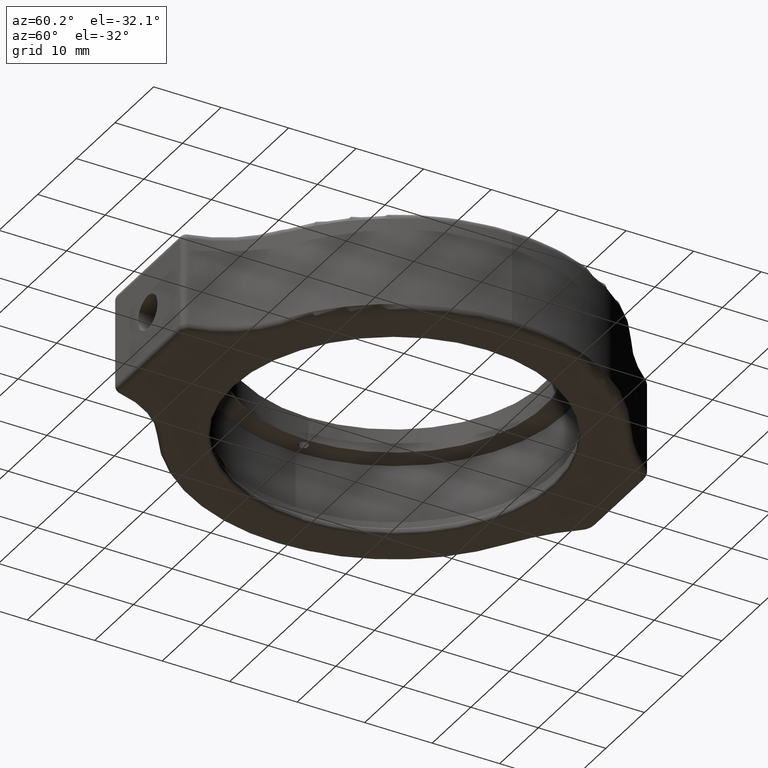
[diagram: clean part render]
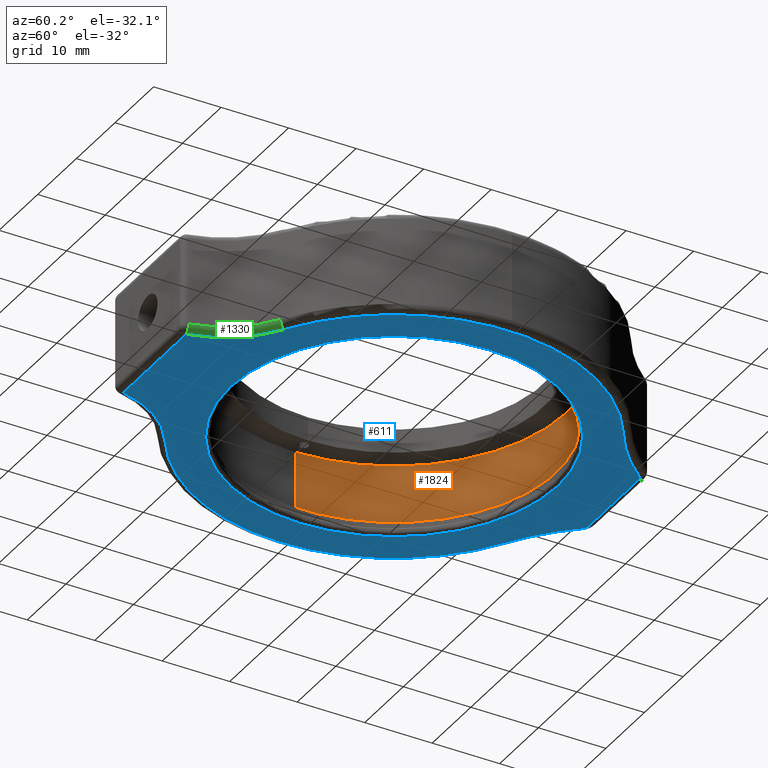
[diagram: same view with three faces highlighted in distinct colors, each labeled with its STEP entity id]
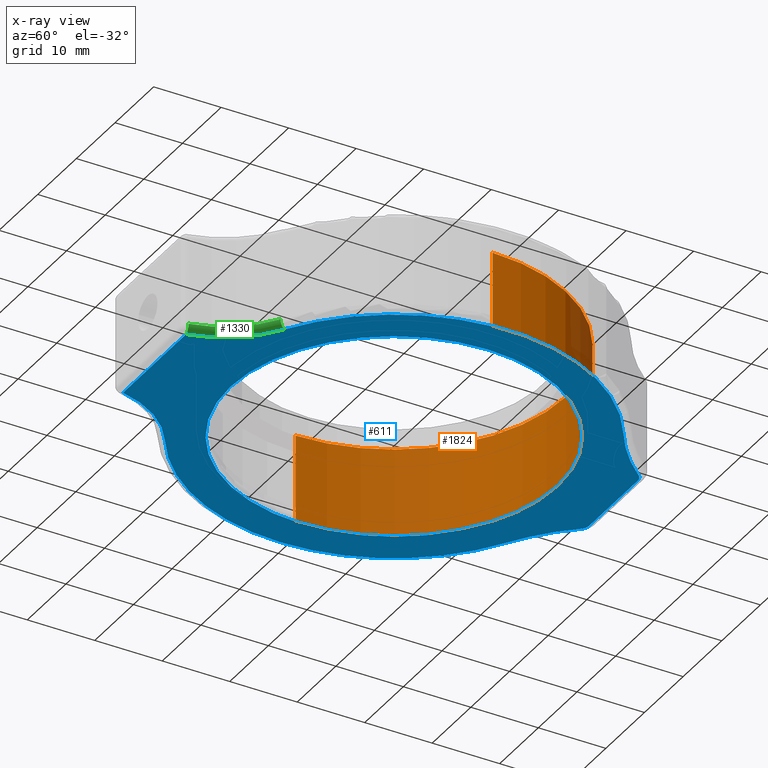
[diagram: x-ray of the same camera — body ghosted, the three highlighted faces saturated]
A machine part, auxiliary view with three faces highlighted in distinct colors.
The next image is the same camera in x-ray (body ghosted, the three faces saturated) — at least one of them is partly hidden behind the body in this view.
Their STEP definitions:

[orange] entity #1824 — the highlighted cylindrical surface (partial cylindrical patch) has radius 25.5 mm, axis along (-0, 0, 1).
#31 = DIRECTION ( 'NONE',  ( 1.000000000000000000, -5.551115123125783700E-016, 0.0000000000000000000 ) ) ;
#173 = CARTESIAN_POINT ( 'NONE',  ( -25.49999999999999600, 1.727819290179649500E-014, -13.90000000000000000 ) ) ;
#202 = VECTOR ( 'NONE', #2071, 1000.000000000000000 ) ;
#207 = CARTESIAN_POINT ( 'NONE',  ( 0.0000000000000000000, 0.0000000000000000000, -0.9999999999999974500 ) ) ;
#279 = FACE_OUTER_BOUND ( 'NONE', #420, .T. ) ;
#377 = DIRECTION ( 'NONE',  ( -0.0000000000000000000, 0.0000000000000000000, 1.000000000000000000 ) ) ;
#420 = EDGE_LOOP ( 'NONE', ( #1466, #2074, #2167, #625 ) ) ;
#488 = LINE ( 'NONE', #914, #935 ) ;
#556 = VERTEX_POINT ( 'NONE', #173 ) ;
#568 = DIRECTION ( 'NONE',  ( -0.0000000000000000000, 0.0000000000000000000, 1.000000000000000000 ) ) ;
#616 = CIRCLE ( 'NONE', #1088, 25.49999999999999600 ) ;
#625 = ORIENTED_EDGE ( 'NONE', *, *, #2100, .T. ) ;
#771 = EDGE_CURVE ( 'NONE', #1359, #966, #488, .T. ) ;
#905 = CIRCLE ( 'NONE', #2127, 25.49999999999999600 ) ;
#914 = CARTESIAN_POINT ( 'NONE',  ( 25.49999999999999600, -1.415534356397074600E-014, -14.00000000000000000 ) ) ;
#935 = VECTOR ( 'NONE', #568, 1000.000000000000000 ) ;
#966 = VERTEX_POINT ( 'NONE', #2171 ) ;
#1088 = AXIS2_PLACEMENT_3D ( 'NONE', #1128, #1798, #1303 ) ;
#1092 = CARTESIAN_POINT ( 'NONE',  ( 25.49999999999999600, -1.415534356397074600E-014, -13.90000000000000000 ) ) ;
#1128 = CARTESIAN_POINT ( 'NONE',  ( 0.0000000000000000000, 0.0000000000000000000, -13.90000000000000000 ) ) ;
#1144 = VERTEX_POINT ( 'NONE', #1529 ) ;
#1183 = LINE ( 'NONE', #1865, #202 ) ;
#1303 = DIRECTION ( 'NONE',  ( -1.000000000000000000, 5.551115123125783700E-016, 0.0000000000000000000 ) ) ;
#1346 = AXIS2_PLACEMENT_3D ( 'NONE', #1912, #377, #31 ) ;
#1359 = VERTEX_POINT ( 'NONE', #1092 ) ;
#1466 = ORIENTED_EDGE ( 'NONE', *, *, #2026, .F. ) ;
#1528 = CYLINDRICAL_SURFACE ( 'NONE', #1346, 25.49999999999999600 ) ;
#1529 = CARTESIAN_POINT ( 'NONE',  ( -25.49999999999999600, 1.727819290179649500E-014, -0.9999999999999974500 ) ) ;
#1549 = EDGE_CURVE ( 'NONE', #556, #1359, #616, .T. ) ;
#1721 = DIRECTION ( 'NONE',  ( -0.0000000000000000000, -0.0000000000000000000, 1.000000000000000000 ) ) ;
#1798 = DIRECTION ( 'NONE',  ( 0.0000000000000000000, 0.0000000000000000000, -1.000000000000000000 ) ) ;
#1824 = ADVANCED_FACE ( 'NONE', ( #279 ), #1528, .F. ) ;
#1865 = CARTESIAN_POINT ( 'NONE',  ( -25.49999999999999600, 1.727819290179649500E-014, -14.00000000000000000 ) ) ;
#1912 = CARTESIAN_POINT ( 'NONE',  ( 0.0000000000000000000, 0.0000000000000000000, -14.00000000000000000 ) ) ;
#2026 = EDGE_CURVE ( 'NONE', #556, #1144, #1183, .T. ) ;
#2071 = DIRECTION ( 'NONE',  ( -0.0000000000000000000, 0.0000000000000000000, 1.000000000000000000 ) ) ;
#2074 = ORIENTED_EDGE ( 'NONE', *, *, #1549, .T. ) ;
#2091 = DIRECTION ( 'NONE',  ( -1.000000000000000000, 5.551115123125783700E-016, 0.0000000000000000000 ) ) ;
#2100 = EDGE_CURVE ( 'NONE', #966, #1144, #905, .T. ) ;
#2127 = AXIS2_PLACEMENT_3D ( 'NONE', #207, #1721, #2091 ) ;
#2167 = ORIENTED_EDGE ( 'NONE', *, *, #771, .T. ) ;
#2171 = CARTESIAN_POINT ( 'NONE',  ( 25.49999999999999600, -1.415534356397074600E-014, -0.9999999999999974500 ) ) ;

[blue] entity #611 — the highlighted planar face has unit normal (0, 0, -1).
#4 = DIRECTION ( 'NONE',  ( -1.000000000000000000, 4.476705744456276300E-016, 0.0000000000000000000 ) ) ;
#41 = VERTEX_POINT ( 'NONE', #1503 ) ;
#78 = CARTESIAN_POINT ( 'NONE',  ( -23.82854766327788800, -38.76145400083557000, -15.00000000000000000 ) ) ;
#85 = AXIS2_PLACEMENT_3D ( 'NONE', #1055, #225, #4 ) ;
#88 = DIRECTION ( 'NONE',  ( -0.0000000000000000000, -0.0000000000000000000, 1.000000000000000000 ) ) ;
#113 = EDGE_CURVE ( 'NONE', #1043, #288, #773, .T. ) ;
#121 = CIRCLE ( 'NONE', #814, 24.24999999999999600 ) ;
#147 = PLANE ( 'NONE',  #1410 ) ;
#182 = CIRCLE ( 'NONE', #2233, 29.50000000000000000 ) ;
#201 = DIRECTION ( 'NONE',  ( -1.000000000000000000, 4.476705744456276300E-016, 0.0000000000000000000 ) ) ;
#215 = EDGE_CURVE ( 'NONE', #41, #1593, #2164, .T. ) ;
#218 = CARTESIAN_POINT ( 'NONE',  ( -8.164483126880139000, -35.49999999999997900, -15.00000000000000000 ) ) ;
#225 = DIRECTION ( 'NONE',  ( -0.0000000000000000000, -0.0000000000000000000, 1.000000000000000000 ) ) ;
#288 = VERTEX_POINT ( 'NONE', #2133 ) ;
#303 = ORIENTED_EDGE ( 'NONE', *, *, #2144, .T. ) ;
#306 = DIRECTION ( 'NONE',  ( -1.000000000000000000, 5.551115123125783700E-016, 0.0000000000000000000 ) ) ;
#328 = AXIS2_PLACEMENT_3D ( 'NONE', #1194, #1898, #864 ) ;
#329 = ORIENTED_EDGE ( 'NONE', *, *, #1392, .T. ) ;
#424 = DIRECTION ( 'NONE',  ( 0.0000000000000000000, 0.0000000000000000000, -1.000000000000000000 ) ) ;
#457 = ORIENTED_EDGE ( 'NONE', *, *, #1947, .T. ) ;
#464 = DIRECTION ( 'NONE',  ( -1.000000000000000000, 2.168404344971009700E-015, 0.0000000000000000000 ) ) ;
#476 = AXIS2_PLACEMENT_3D ( 'NONE', #1869, #1010, #999 ) ;
#502 = CIRCLE ( 'NONE', #1779, 15.99999999999999300 ) ;
#516 = CARTESIAN_POINT ( 'NONE',  ( 0.0000000000000000000, 0.0000000000000000000, -15.00000000000000000 ) ) ;
#519 = AXIS2_PLACEMENT_3D ( 'NONE', #1403, #1231, #201 ) ;
#536 = AXIS2_PLACEMENT_3D ( 'NONE', #1770, #1761, #755 ) ;
#611 = ADVANCED_FACE ( 'NONE', ( #1789, #2126 ), #147, .T. ) ;
#615 = CARTESIAN_POINT ( 'NONE',  ( -15.25464522049215800, 25.24966928886230400, -15.00000000000000000 ) ) ;
#688 = ORIENTED_EDGE ( 'NONE', *, *, #1485, .T. ) ;
#732 = CARTESIAN_POINT ( 'NONE',  ( 6.298798930161442700, 31.00000000000000000, -15.00000000000000000 ) ) ;
#755 = DIRECTION ( 'NONE',  ( -1.000000000000000000, 5.551115123125783700E-016, 0.0000000000000000000 ) ) ;
#766 = CARTESIAN_POINT ( 'NONE',  ( 15.25464522049211700, 25.24966928886229700, -15.00000000000000000 ) ) ;
#773 = LINE ( 'NONE', #1904, #1450 ) ;
#805 = CARTESIAN_POINT ( 'NONE',  ( 0.0000000000000000000, 0.0000000000000000000, -15.00000000000000000 ) ) ;
#811 = EDGE_CURVE ( 'NONE', #1763, #1838, #2065, .T. ) ;
#813 = CARTESIAN_POINT ( 'NONE',  ( 0.0000000000000000000, 0.0000000000000000000, -15.00000000000000000 ) ) ;
#814 = AXIS2_PLACEMENT_3D ( 'NONE', #805, #1469, #831 ) ;
#831 = DIRECTION ( 'NONE',  ( -1.000000000000000000, 5.551115123125783700E-016, 0.0000000000000000000 ) ) ;
#833 = CIRCLE ( 'NONE', #476, 1.500000000000004900 ) ;
#840 = VERTEX_POINT ( 'NONE', #766 ) ;
#864 = DIRECTION ( 'NONE',  ( -1.000000000000000000, -3.035766082959413600E-015, 0.0000000000000000000 ) ) ;
#877 = VERTEX_POINT ( 'NONE', #1808 ) ;
#973 = EDGE_LOOP ( 'NONE', ( #2148, #688, #1109, #2070, #303, #1170, #1253, #1695, #1334, #2220, #457 ) ) ;
#999 = DIRECTION ( 'NONE',  ( -1.000000000000000000, 0.0000000000000000000, 0.0000000000000000000 ) ) ;
#1010 = DIRECTION ( 'NONE',  ( 0.0000000000000000000, 0.0000000000000000000, -1.000000000000000000 ) ) ;
#1018 = DIRECTION ( 'NONE',  ( 1.000000000000000000, -5.551115123125783700E-016, -0.0000000000000000000 ) ) ;
#1028 = EDGE_CURVE ( 'NONE', #877, #1991, #121, .T. ) ;
#1043 = VERTEX_POINT ( 'NONE', #2187 ) ;
#1052 = EDGE_CURVE ( 'NONE', #1674, #41, #182, .T. ) ;
#1055 = CARTESIAN_POINT ( 'NONE',  ( 31.28495036744990900, 51.78322006698877500, -15.00000000000000000 ) ) ;
#1089 = VERTEX_POINT ( 'NONE', #1660 ) ;
#1101 = CIRCLE ( 'NONE', #536, 24.24999999999999600 ) ;
#1106 = EDGE_CURVE ( 'NONE', #1656, #1043, #833, .T. ) ;
#1108 = ORIENTED_EDGE ( 'NONE', *, *, #1028, .T. ) ;
#1109 = ORIENTED_EDGE ( 'NONE', *, *, #1052, .T. ) ;
#1170 = ORIENTED_EDGE ( 'NONE', *, *, #1106, .T. ) ;
#1194 = CARTESIAN_POINT ( 'NONE',  ( 23.82854766327792400, -38.76145400083557000, -15.00000000000000000 ) ) ;
#1212 = AXIS2_PLACEMENT_3D ( 'NONE', #1256, #424, #1752 ) ;
#1228 = CARTESIAN_POINT ( 'NONE',  ( 15.44927815531207000, -25.13105259394834700, -15.00000000000000000 ) ) ;
#1231 = DIRECTION ( 'NONE',  ( -0.0000000000000000000, -0.0000000000000000000, 1.000000000000000000 ) ) ;
#1232 = AXIS2_PLACEMENT_3D ( 'NONE', #2135, #1435, #1777 ) ;
#1238 = VERTEX_POINT ( 'NONE', #1228 ) ;
#1242 = DIRECTION ( 'NONE',  ( -1.000000000000000000, 0.0000000000000000000, 0.0000000000000000000 ) ) ;
#1253 = ORIENTED_EDGE ( 'NONE', *, *, #113, .T. ) ;
#1256 = CARTESIAN_POINT ( 'NONE',  ( 0.0000000000000000000, 0.0000000000000000000, -15.00000000000000000 ) ) ;
#1261 = EDGE_LOOP ( 'NONE', ( #1108, #329 ) ) ;
#1334 = ORIENTED_EDGE ( 'NONE', *, *, #2107, .T. ) ;
#1344 = EDGE_CURVE ( 'NONE', #840, #1238, #2105, .T. ) ;
#1362 = CIRCLE ( 'NONE', #1537, 1.500000000000001300 ) ;
#1392 = EDGE_CURVE ( 'NONE', #1991, #877, #1101, .T. ) ;
#1403 = CARTESIAN_POINT ( 'NONE',  ( -31.28495036744999400, 51.78322006698884600, -15.00000000000000000 ) ) ;
#1410 = AXIS2_PLACEMENT_3D ( 'NONE', #516, #1692, #2226 ) ;
#1435 = DIRECTION ( 'NONE',  ( 0.0000000000000000000, 0.0000000000000000000, -1.000000000000000000 ) ) ;
#1450 = VECTOR ( 'NONE', #1018, 1000.000000000000000 ) ;
#1458 = VECTOR ( 'NONE', #2109, 1000.000000000000000 ) ;
#1469 = DIRECTION ( 'NONE',  ( -0.0000000000000000000, -0.0000000000000000000, 1.000000000000000000 ) ) ;
#1485 = EDGE_CURVE ( 'NONE', #1838, #1674, #502, .T. ) ;
#1503 = CARTESIAN_POINT ( 'NONE',  ( -29.50000000000000000, 1.665334536937735100E-014, -15.00000000000000000 ) ) ;
#1537 = AXIS2_PLACEMENT_3D ( 'NONE', #732, #1560, #1242 ) ;
#1560 = DIRECTION ( 'NONE',  ( 0.0000000000000000000, 0.0000000000000000000, -1.000000000000000000 ) ) ;
#1593 = VERTEX_POINT ( 'NONE', #615 ) ;
#1614 = CIRCLE ( 'NONE', #85, 31.00000000000000000 ) ;
#1656 = VERTEX_POINT ( 'NONE', #2034 ) ;
#1660 = CARTESIAN_POINT ( 'NONE',  ( 7.452005919574767200, 31.95922554155331600, -15.00000000000000000 ) ) ;
#1674 = VERTEX_POINT ( 'NONE', #1842 ) ;
#1692 = DIRECTION ( 'NONE',  ( 0.0000000000000000000, 0.0000000000000000000, -1.000000000000000000 ) ) ;
#1695 = ORIENTED_EDGE ( 'NONE', *, *, #1829, .T. ) ;
#1714 = CARTESIAN_POINT ( 'NONE',  ( 24.24999999999999600, -1.049168568564769100E-014, -15.00000000000000000 ) ) ;
#1747 = CIRCLE ( 'NONE', #519, 31.00000000000000000 ) ;
#1752 = DIRECTION ( 'NONE',  ( -1.000000000000000000, 5.551115123125783700E-016, 0.0000000000000000000 ) ) ;
#1761 = DIRECTION ( 'NONE',  ( -0.0000000000000000000, -0.0000000000000000000, 1.000000000000000000 ) ) ;
#1763 = VERTEX_POINT ( 'NONE', #1902 ) ;
#1770 = CARTESIAN_POINT ( 'NONE',  ( 0.0000000000000000000, 0.0000000000000000000, -15.00000000000000000 ) ) ;
#1777 = DIRECTION ( 'NONE',  ( -1.000000000000000000, 5.551115123125783700E-016, 0.0000000000000000000 ) ) ;
#1779 = AXIS2_PLACEMENT_3D ( 'NONE', #78, #88, #464 ) ;
#1789 = FACE_BOUND ( 'NONE', #1261, .T. ) ;
#1808 = CARTESIAN_POINT ( 'NONE',  ( -24.24999999999999600, 1.346145417358002500E-014, -15.00000000000000000 ) ) ;
#1829 = EDGE_CURVE ( 'NONE', #288, #1089, #1362, .T. ) ;
#1838 = VERTEX_POINT ( 'NONE', #1927 ) ;
#1842 = CARTESIAN_POINT ( 'NONE',  ( -15.44927815531203300, -25.13105259394834300, -15.00000000000000000 ) ) ;
#1869 = CARTESIAN_POINT ( 'NONE',  ( -6.298798930161487100, 31.00000000000000000, -15.00000000000000000 ) ) ;
#1898 = DIRECTION ( 'NONE',  ( -0.0000000000000000000, -0.0000000000000000000, 1.000000000000000000 ) ) ;
#1902 = CARTESIAN_POINT ( 'NONE',  ( 8.164483126880179900, -35.50000000000000700, -15.00000000000000000 ) ) ;
#1904 = CARTESIAN_POINT ( 'NONE',  ( -2.164934898019056500E-014, 32.50000000000000700, -15.00000000000000000 ) ) ;
#1927 = CARTESIAN_POINT ( 'NONE',  ( -8.164483126880139000, -35.49999999999997900, -15.00000000000000000 ) ) ;
#1947 = EDGE_CURVE ( 'NONE', #1238, #1763, #2111, .T. ) ;
#1991 = VERTEX_POINT ( 'NONE', #1714 ) ;
#2034 = CARTESIAN_POINT ( 'NONE',  ( -7.452005919574807200, 31.95922554155331600, -15.00000000000000000 ) ) ;
#2065 = LINE ( 'NONE', #218, #1458 ) ;
#2070 = ORIENTED_EDGE ( 'NONE', *, *, #215, .T. ) ;
#2105 = CIRCLE ( 'NONE', #1232, 29.50000000000000000 ) ;
#2107 = EDGE_CURVE ( 'NONE', #1089, #840, #1614, .T. ) ;
#2109 = DIRECTION ( 'NONE',  ( -1.000000000000000000, 5.551115123125783700E-016, 0.0000000000000000000 ) ) ;
#2111 = CIRCLE ( 'NONE', #328, 15.99999999999999300 ) ;
#2126 = FACE_OUTER_BOUND ( 'NONE', #973, .T. ) ;
#2133 = CARTESIAN_POINT ( 'NONE',  ( 6.298798930161442700, 32.50000000000000700, -15.00000000000000000 ) ) ;
#2135 = CARTESIAN_POINT ( 'NONE',  ( 0.0000000000000000000, 0.0000000000000000000, -15.00000000000000000 ) ) ;
#2144 = EDGE_CURVE ( 'NONE', #1593, #1656, #1747, .T. ) ;
#2148 = ORIENTED_EDGE ( 'NONE', *, *, #811, .T. ) ;
#2164 = CIRCLE ( 'NONE', #1212, 29.50000000000000000 ) ;
#2181 = DIRECTION ( 'NONE',  ( 0.0000000000000000000, 0.0000000000000000000, -1.000000000000000000 ) ) ;
#2187 = CARTESIAN_POINT ( 'NONE',  ( -6.298798930161487100, 32.50000000000000700, -15.00000000000000000 ) ) ;
#2220 = ORIENTED_EDGE ( 'NONE', *, *, #1344, .T. ) ;
#2226 = DIRECTION ( 'NONE',  ( -1.000000000000000000, 5.551115123125783700E-016, 0.0000000000000000000 ) ) ;
#2233 = AXIS2_PLACEMENT_3D ( 'NONE', #813, #2181, #306 ) ;

[green] entity #1330 — the highlighted toroidal blend (fillet) surface has major radius 16 mm and minor (blend) radius 1 mm.
#40 = CARTESIAN_POINT ( 'NONE',  ( 9.143487160405019400, -35.70384087505222200, -13.99999999999999800 ) ) ;
#91 = VERTEX_POINT ( 'NONE', #1219 ) ;
#100 = EDGE_CURVE ( 'NONE', #1763, #1454, #455, .T. ) ;
#150 = AXIS2_PLACEMENT_3D ( 'NONE', #960, #1126, #655 ) ;
#168 = CARTESIAN_POINT ( 'NONE',  ( 8.164483126880179900, -35.50000000000000700, -13.99999999999999800 ) ) ;
#169 = ORIENTED_EDGE ( 'NONE', *, *, #1947, .F. ) ;
#196 = DIRECTION ( 'NONE',  ( 0.0000000000000000000, 0.0000000000000000000, -1.000000000000000000 ) ) ;
#328 = AXIS2_PLACEMENT_3D ( 'NONE', #1194, #1898, #864 ) ;
#356 = CIRCLE ( 'NONE', #150, 14.99999999999999500 ) ;
#455 = CIRCLE ( 'NONE', #599, 1.000000000000000200 ) ;
#482 = EDGE_CURVE ( 'NONE', #1454, #91, #356, .T. ) ;
#490 = CIRCLE ( 'NONE', #512, 1.000000000000001100 ) ;
#512 = AXIS2_PLACEMENT_3D ( 'NONE', #1169, #865, #1683 ) ;
#538 = EDGE_CURVE ( 'NONE', #1238, #91, #490, .T. ) ;
#599 = AXIS2_PLACEMENT_3D ( 'NONE', #168, #1878, #1544 ) ;
#655 = DIRECTION ( 'NONE',  ( -1.000000000000000000, 4.625929269271486900E-016, 0.0000000000000000000 ) ) ;
#737 = ORIENTED_EDGE ( 'NONE', *, *, #482, .F. ) ;
#864 = DIRECTION ( 'NONE',  ( -1.000000000000000000, -3.035766082959413600E-015, 0.0000000000000000000 ) ) ;
#865 = DIRECTION ( 'NONE',  ( -0.8519000879304528000, -0.5237043442478658300, 0.0000000000000000000 ) ) ;
#937 = ORIENTED_EDGE ( 'NONE', *, *, #538, .T. ) ;
#960 = CARTESIAN_POINT ( 'NONE',  ( 23.82854766327792400, -38.76145400083557000, -13.99999999999999800 ) ) ;
#1035 = CARTESIAN_POINT ( 'NONE',  ( 23.82854766327792400, -38.76145400083557000, -13.99999999999999800 ) ) ;
#1126 = DIRECTION ( 'NONE',  ( 0.0000000000000000000, 0.0000000000000000000, -1.000000000000000000 ) ) ;
#1169 = CARTESIAN_POINT ( 'NONE',  ( 15.44927815531207000, -25.13105259394834700, -13.99999999999999800 ) ) ;
#1193 = ORIENTED_EDGE ( 'NONE', *, *, #100, .F. ) ;
#1194 = CARTESIAN_POINT ( 'NONE',  ( 23.82854766327792400, -38.76145400083557000, -15.00000000000000000 ) ) ;
#1219 = CARTESIAN_POINT ( 'NONE',  ( 15.97298249955993100, -25.98295268187880700, -13.99999999999999800 ) ) ;
#1228 = CARTESIAN_POINT ( 'NONE',  ( 15.44927815531207000, -25.13105259394834700, -15.00000000000000000 ) ) ;
#1238 = VERTEX_POINT ( 'NONE', #1228 ) ;
#1284 = EDGE_LOOP ( 'NONE', ( #937, #737, #1193, #169 ) ) ;
#1330 = ADVANCED_FACE ( 'NONE', ( #1970 ), #2079, .T. ) ;
#1454 = VERTEX_POINT ( 'NONE', #40 ) ;
#1495 = AXIS2_PLACEMENT_3D ( 'NONE', #1035, #196, #1547 ) ;
#1544 = DIRECTION ( 'NONE',  ( -0.9790040335248583200, 0.2038408750522288100, 0.0000000000000000000 ) ) ;
#1547 = DIRECTION ( 'NONE',  ( -1.000000000000000000, 4.081702296416018000E-016, 0.0000000000000000000 ) ) ;
#1683 = DIRECTION ( 'NONE',  ( -0.5237043442478656100, 0.8519000879304528000, 0.0000000000000000000 ) ) ;
#1763 = VERTEX_POINT ( 'NONE', #1902 ) ;
#1878 = DIRECTION ( 'NONE',  ( -0.2038408750522281400, -0.9790040335248583200, 0.0000000000000000000 ) ) ;
#1898 = DIRECTION ( 'NONE',  ( -0.0000000000000000000, -0.0000000000000000000, 1.000000000000000000 ) ) ;
#1902 = CARTESIAN_POINT ( 'NONE',  ( 8.164483126880179900, -35.50000000000000700, -15.00000000000000000 ) ) ;
#1947 = EDGE_CURVE ( 'NONE', #1238, #1763, #2111, .T. ) ;
#1970 = FACE_OUTER_BOUND ( 'NONE', #1284, .T. ) ;
#2079 = TOROIDAL_SURFACE ( 'NONE', #1495, 15.99999999999999300, 1.000000000000000000 ) ;
#2111 = CIRCLE ( 'NONE', #328, 15.99999999999999300 ) ;